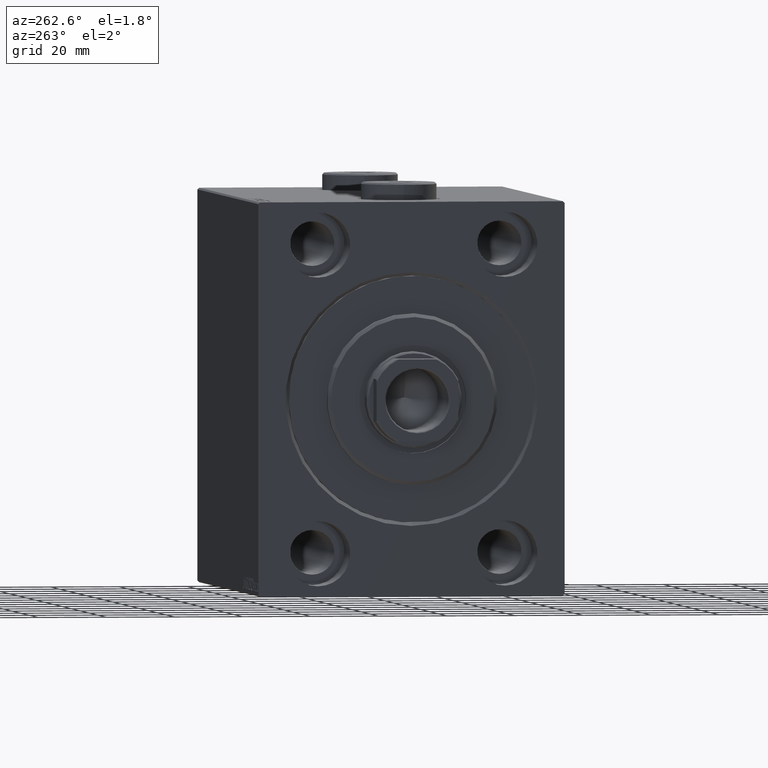
[diagram: clean part render]
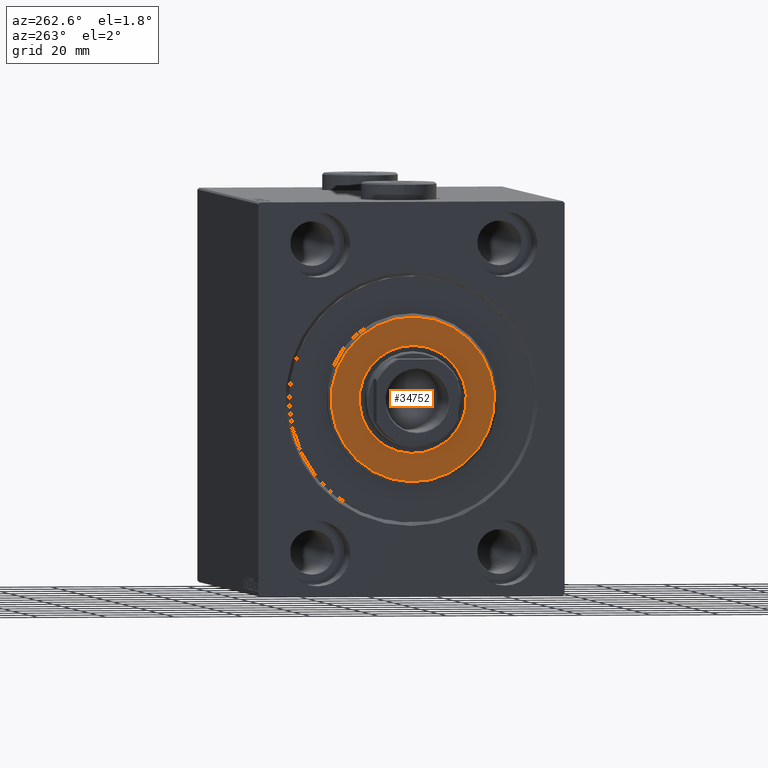
[diagram: same view with one face highlighted and labeled with its STEP entity id]
A machine part, auxiliary view. The second image highlights one B-rep face of the part: STEP entity #34752.
In plain terms, the highlighted planar face has unit normal (-1, 0, 0).
Its self-contained STEP definition (entity closure, byte-faithful):
#1245 = EDGE_CURVE ( 'NONE', #26916, #22871, #28583, .T. ) ;
#1576 = VERTEX_POINT ( 'NONE', #16957 ) ;
#2130 = EDGE_LOOP ( 'NONE', ( #39624, #38262 ) ) ;
#2876 = DIRECTION ( 'NONE',  ( 0.000000000000000000, 0.000000000000000000, -1.000000000000000000 ) ) ;
#3056 = CIRCLE ( 'NONE', #16202, 24.00000000000000711 ) ;
#3077 = EDGE_CURVE ( 'NONE', #22871, #26916, #43293, .T. ) ;
#3642 = DIRECTION ( 'NONE',  ( 0.000000000000000000, 0.000000000000000000, -1.000000000000000000 ) ) ;
#4357 = EDGE_CURVE ( 'NONE', #14716, #1576, #25033, .T. ) ;
#5219 = AXIS2_PLACEMENT_3D ( 'NONE', #34035, #23737, #2876 ) ;
#8185 = DIRECTION ( 'NONE',  ( -1.000000000000000000, 0.000000000000000000, -0.000000000000000000 ) ) ;
#9391 = CARTESIAN_POINT ( 'NONE',  ( 3.000000000000000000, 0.000000000000000000, 15.75000000000000000 ) ) ;
#11129 = AXIS2_PLACEMENT_3D ( 'NONE', #20836, #42584, #3642 ) ;
#14716 = VERTEX_POINT ( 'NONE', #15047 ) ;
#14833 = DIRECTION ( 'NONE',  ( 0.000000000000000000, 0.000000000000000000, -1.000000000000000000 ) ) ;
#15047 = CARTESIAN_POINT ( 'NONE',  ( 3.000000000000000000, 0.000000000000000000, 24.00000000000000711 ) ) ;
#16202 = AXIS2_PLACEMENT_3D ( 'NONE', #19016, #44002, #32998 ) ;
#16957 = CARTESIAN_POINT ( 'NONE',  ( 3.000000000000000000, 3.000384657911015469E-15, -24.00000000000000711 ) ) ;
#18628 = EDGE_LOOP ( 'NONE', ( #36459, #44019 ) ) ;
#19016 = CARTESIAN_POINT ( 'NONE',  ( 3.000000000000000000, 0.000000000000000000, 0.000000000000000000 ) ) ;
#20325 = DIRECTION ( 'NONE',  ( 0.000000000000000000, 0.000000000000000000, -1.000000000000000000 ) ) ;
#20836 = CARTESIAN_POINT ( 'NONE',  ( 3.000000000000000000, 0.000000000000000000, 0.000000000000000000 ) ) ;
#22871 = VERTEX_POINT ( 'NONE', #25271 ) ;
#23533 = AXIS2_PLACEMENT_3D ( 'NONE', #43014, #8185, #14833 ) ;
#23737 = DIRECTION ( 'NONE',  ( -1.000000000000000000, 0.000000000000000000, -0.000000000000000000 ) ) ;
#25033 = CIRCLE ( 'NONE', #11129, 24.00000000000000711 ) ;
#25271 = CARTESIAN_POINT ( 'NONE',  ( 3.000000000000000000, 1.928818708657080950E-15, -15.75000000000000000 ) ) ;
#26916 = VERTEX_POINT ( 'NONE', #9391 ) ;
#27207 = FACE_OUTER_BOUND ( 'NONE', #2130, .T. ) ;
#27429 = FACE_BOUND ( 'NONE', #18628, .T. ) ;
#28583 = CIRCLE ( 'NONE', #5219, 15.75000000000000000 ) ;
#30424 = PLANE ( 'NONE',  #32291 ) ;
#32291 = AXIS2_PLACEMENT_3D ( 'NONE', #44399, #34081, #20325 ) ;
#32998 = DIRECTION ( 'NONE',  ( 0.000000000000000000, 0.000000000000000000, -1.000000000000000000 ) ) ;
#34035 = CARTESIAN_POINT ( 'NONE',  ( 3.000000000000000000, 0.000000000000000000, 0.000000000000000000 ) ) ;
#34081 = DIRECTION ( 'NONE',  ( 1.000000000000000000, -0.000000000000000000, 0.000000000000000000 ) ) ;
#34431 = EDGE_CURVE ( 'NONE', #1576, #14716, #3056, .T. ) ;
#34752 = ADVANCED_FACE ( 'NONE', ( #27207, #27429 ), #30424, .T. ) ;
#36459 = ORIENTED_EDGE ( 'NONE', *, *, #1245, .T. ) ;
#38262 = ORIENTED_EDGE ( 'NONE', *, *, #34431, .T. ) ;
#39624 = ORIENTED_EDGE ( 'NONE', *, *, #4357, .T. ) ;
#42584 = DIRECTION ( 'NONE',  ( 1.000000000000000000, -0.000000000000000000, 0.000000000000000000 ) ) ;
#43014 = CARTESIAN_POINT ( 'NONE',  ( 3.000000000000000000, 0.000000000000000000, 0.000000000000000000 ) ) ;
#43293 = CIRCLE ( 'NONE', #23533, 15.75000000000000000 ) ;
#44002 = DIRECTION ( 'NONE',  ( 1.000000000000000000, -0.000000000000000000, 0.000000000000000000 ) ) ;
#44019 = ORIENTED_EDGE ( 'NONE', *, *, #3077, .T. ) ;
#44399 = CARTESIAN_POINT ( 'NONE',  ( 3.000000000000000000, 0.000000000000000000, 0.000000000000000000 ) ) ;